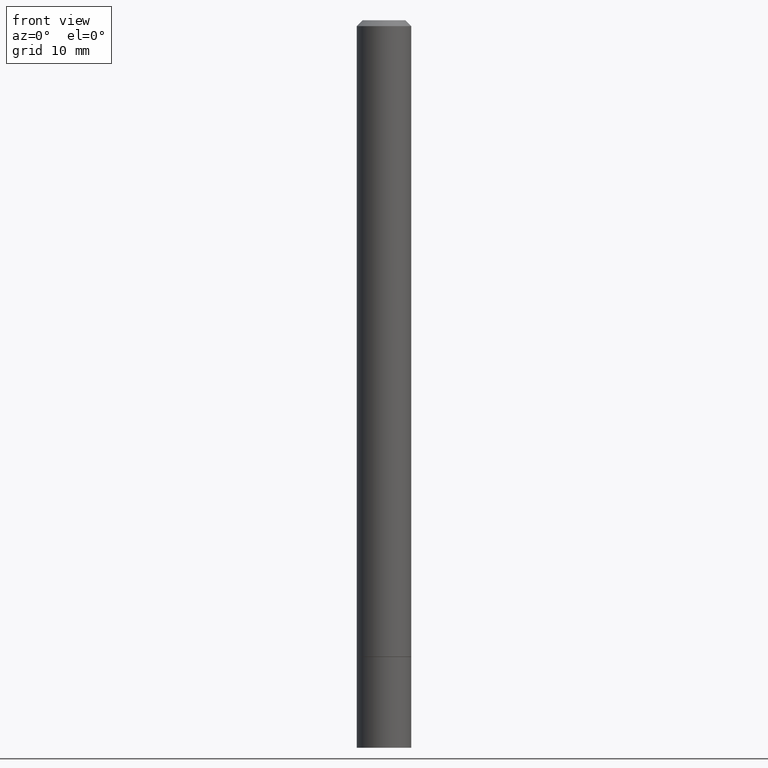
[diagram: clean part render]
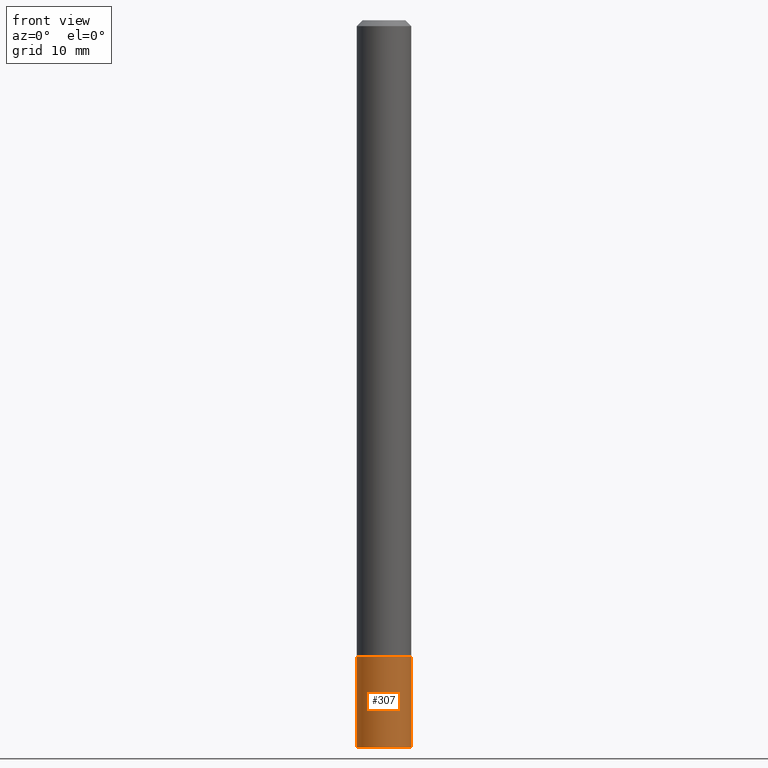
[diagram: same view with one face highlighted and labeled with its STEP entity id]
A machine part, front view. The second image highlights one B-rep face of the part: STEP entity #307.
In plain terms, the highlighted cylindrical surface (edge-blend (fillet) strip) has radius 2.3812 mm, axis along (-0, 0, 1).
Its self-contained STEP definition (entity closure, byte-faithful):
#16 = VERTEX_POINT ( 'NONE', #342 ) ;
#22 = EDGE_CURVE ( 'NONE', #264, #46, #40, .T. ) ;
#26 = AXIS2_PLACEMENT_3D ( 'NONE', #121, #52, #281 ) ;
#31 = EDGE_CURVE ( 'NONE', #16, #46, #175, .T. ) ;
#40 = LINE ( 'NONE', #343, #272 ) ;
#45 = DIRECTION ( 'NONE',  ( 1.000000000000000000, -6.982962677686263555E-15, 0.000000000000000000 ) ) ;
#46 = VERTEX_POINT ( 'NONE', #269 ) ;
#52 = DIRECTION ( 'NONE',  ( -2.445468806185136597E-29, 3.491481338843145583E-15, 1.000000000000000000 ) ) ;
#73 = ORIENTED_EDGE ( 'NONE', *, *, #199, .T. ) ;
#86 = ORIENTED_EDGE ( 'NONE', *, *, #31, .F. ) ;
#93 = CIRCLE ( 'NONE', #26, 0.09374999999999998612 ) ;
#95 = DIRECTION ( 'NONE',  ( -2.445468806185136877E-29, 3.491481338843145188E-15, 1.000000000000000000 ) ) ;
#104 = VECTOR ( 'NONE', #118, 39.37007874015748143 ) ;
#111 = AXIS2_PLACEMENT_3D ( 'NONE', #186, #135, #45 ) ;
#113 = EDGE_CURVE ( 'NONE', #214, #16, #313, .T. ) ;
#117 = CARTESIAN_POINT ( 'NONE',  ( 0.000000000000000000, 0.000000000000000000, 0.000000000000000000 ) ) ;
#118 = DIRECTION ( 'NONE',  ( -2.445468806185136877E-29, 3.491481338843145188E-15, 1.000000000000000000 ) ) ;
#121 = CARTESIAN_POINT ( 'NONE',  ( 6.113672015462842613E-29, -8.728703347107864943E-15, -2.500000000000000000 ) ) ;
#135 = DIRECTION ( 'NONE',  ( -2.445468806185136597E-29, 3.491481338843145583E-15, 1.000000000000000000 ) ) ;
#137 = ORIENTED_EDGE ( 'NONE', *, *, #113, .F. ) ;
#149 = CYLINDRICAL_SURFACE ( 'NONE', #330, 0.09374999999999998612 ) ;
#151 = EDGE_LOOP ( 'NONE', ( #137, #73, #159, #86 ) ) ;
#159 = ORIENTED_EDGE ( 'NONE', *, *, #22, .T. ) ;
#174 = CARTESIAN_POINT ( 'NONE',  ( -0.09374999999999998612, 6.661338147750938256E-16, -4.611501647113973295E-30 ) ) ;
#175 = CIRCLE ( 'NONE', #111, 0.09374999999999998612 ) ;
#186 = CARTESIAN_POINT ( 'NONE',  ( 5.349463013529986305E-29, -7.637615428719381825E-15, -2.187500000000000000 ) ) ;
#199 = EDGE_CURVE ( 'NONE', #214, #264, #93, .T. ) ;
#214 = VERTEX_POINT ( 'NONE', #338 ) ;
#226 = FACE_OUTER_BOUND ( 'NONE', #151, .T. ) ;
#244 = CARTESIAN_POINT ( 'NONE',  ( 0.09374999999999998612, -9.383356098140953236E-15, -2.500000000000000000 ) ) ;
#255 = DIRECTION ( 'NONE',  ( -2.445468806185136597E-29, 3.491481338843145583E-15, 1.000000000000000000 ) ) ;
#264 = VERTEX_POINT ( 'NONE', #244 ) ;
#269 = CARTESIAN_POINT ( 'NONE',  ( 0.09374999999999998612, -8.292268179752468540E-15, -2.187500000000000000 ) ) ;
#272 = VECTOR ( 'NONE', #95, 39.37007874015748143 ) ;
#281 = DIRECTION ( 'NONE',  ( 1.000000000000000000, -6.982962677686273810E-15, 0.000000000000000000 ) ) ;
#307 = ADVANCED_FACE ( 'NONE', ( #226 ), #149, .T. ) ;
#313 = LINE ( 'NONE', #174, #104 ) ;
#330 = AXIS2_PLACEMENT_3D ( 'NONE', #117, #255, #356 ) ;
#338 = CARTESIAN_POINT ( 'NONE',  ( -0.09374999999999998612, -7.517025573138528671E-15, -2.500000000000000000 ) ) ;
#342 = CARTESIAN_POINT ( 'NONE',  ( -0.09374999999999998612, -7.517025573138528671E-15, -2.187500000000000000 ) ) ;
#343 = CARTESIAN_POINT ( 'NONE',  ( 0.09374999999999998612, -6.546527510330874055E-16, 4.571415727308689105E-30 ) ) ;
#356 = DIRECTION ( 'NONE',  ( 1.000000000000000000, -6.982962677686266711E-15, 4.876176775795935793E-29 ) ) ;